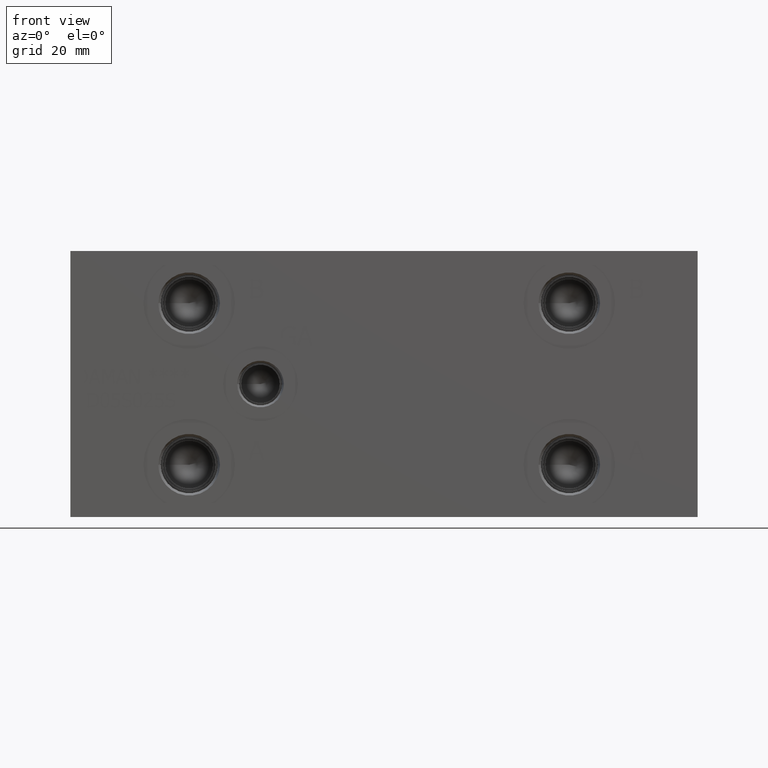
[diagram: clean part render]
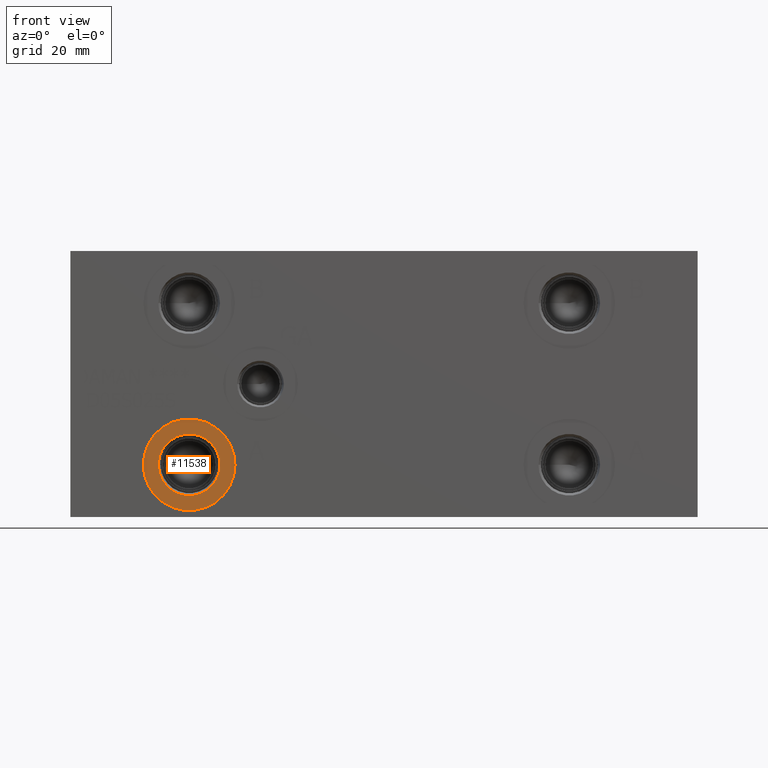
[diagram: same view with one face highlighted and labeled with its STEP entity id]
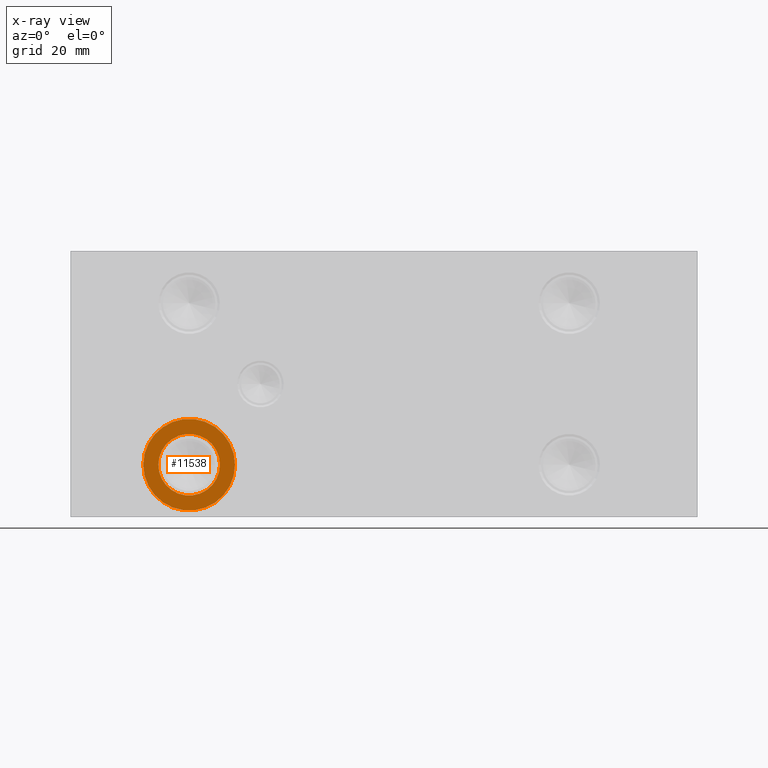
[diagram: x-ray of the same camera — body ghosted, the highlighted face saturated]
A machine part, front view. The second image highlights one B-rep face of the part: STEP entity #11538.
The next image is the same camera in x-ray: the body ghosted, the highlighted face saturated — about 0% of this face is hidden behind the body in this view.
In plain terms, the highlighted planar face has unit normal (0, 1, 0).
Its self-contained STEP definition (entity closure, byte-faithful):
#219=CIRCLE('',#12080,15.3162);
#220=CIRCLE('',#12081,15.3162);
#221=CIRCLE('',#12083,10.2997);
#222=CIRCLE('',#12084,10.2997);
#442=FACE_BOUND('',#2108,.T.);
#1449=FACE_OUTER_BOUND('',#2107,.T.);
#2107=EDGE_LOOP('',(#9762,#9763));
#2108=EDGE_LOOP('',(#9764,#9765));
#5254=VERTEX_POINT('',#19632);
#5255=VERTEX_POINT('',#19634);
#5256=VERTEX_POINT('',#19638);
#5257=VERTEX_POINT('',#19639);
#6807=EDGE_CURVE('',#5254,#5255,#219,.T.);
#6808=EDGE_CURVE('',#5255,#5254,#220,.T.);
#6809=EDGE_CURVE('',#5256,#5257,#221,.T.);
#6810=EDGE_CURVE('',#5257,#5256,#222,.T.);
#9762=ORIENTED_EDGE('',*,*,#6808,.F.);
#9763=ORIENTED_EDGE('',*,*,#6807,.F.);
#9764=ORIENTED_EDGE('',*,*,#6809,.T.);
#9765=ORIENTED_EDGE('',*,*,#6810,.T.);
#10582=PLANE('',#12082);
#11538=ADVANCED_FACE('',(#1449,#442),#10582,.F.);
#12080=AXIS2_PLACEMENT_3D('',#19635,#14162,#14163);
#12081=AXIS2_PLACEMENT_3D('',#19636,#14164,#14165);
#12082=AXIS2_PLACEMENT_3D('',#19637,#14166,#14167);
#12083=AXIS2_PLACEMENT_3D('',#19640,#14168,#14169);
#12084=AXIS2_PLACEMENT_3D('',#19641,#14170,#14171);
#14162=DIRECTION('center_axis',(0.,1.,0.));
#14163=DIRECTION('ref_axis',(1.,0.,0.));
#14164=DIRECTION('center_axis',(0.,1.,0.));
#14165=DIRECTION('ref_axis',(1.,0.,0.));
#14166=DIRECTION('center_axis',(0.,1.,0.));
#14167=DIRECTION('ref_axis',(0.,0.,1.));
#14168=DIRECTION('center_axis',(0.,1.,0.));
#14169=DIRECTION('ref_axis',(1.,0.,0.));
#14170=DIRECTION('center_axis',(0.,1.,0.));
#14171=DIRECTION('ref_axis',(1.,0.,0.));
#19632=CARTESIAN_POINT('',(24.3586,0.7874,17.4752));
#19634=CARTESIAN_POINT('',(54.991,0.7874,17.4752));
#19635=CARTESIAN_POINT('Origin',(39.6748,0.7874,17.4752));
#19636=CARTESIAN_POINT('Origin',(39.6748,0.7874,17.4752));
#19637=CARTESIAN_POINT('Origin',(49.9745,0.7874,17.4752));
#19638=CARTESIAN_POINT('',(49.9745,0.7874,17.4752));
#19639=CARTESIAN_POINT('',(29.3751,0.787400000000001,17.4752));
#19640=CARTESIAN_POINT('Origin',(39.6748,0.7874,17.4752));
#19641=CARTESIAN_POINT('Origin',(39.6748,0.7874,17.4752));